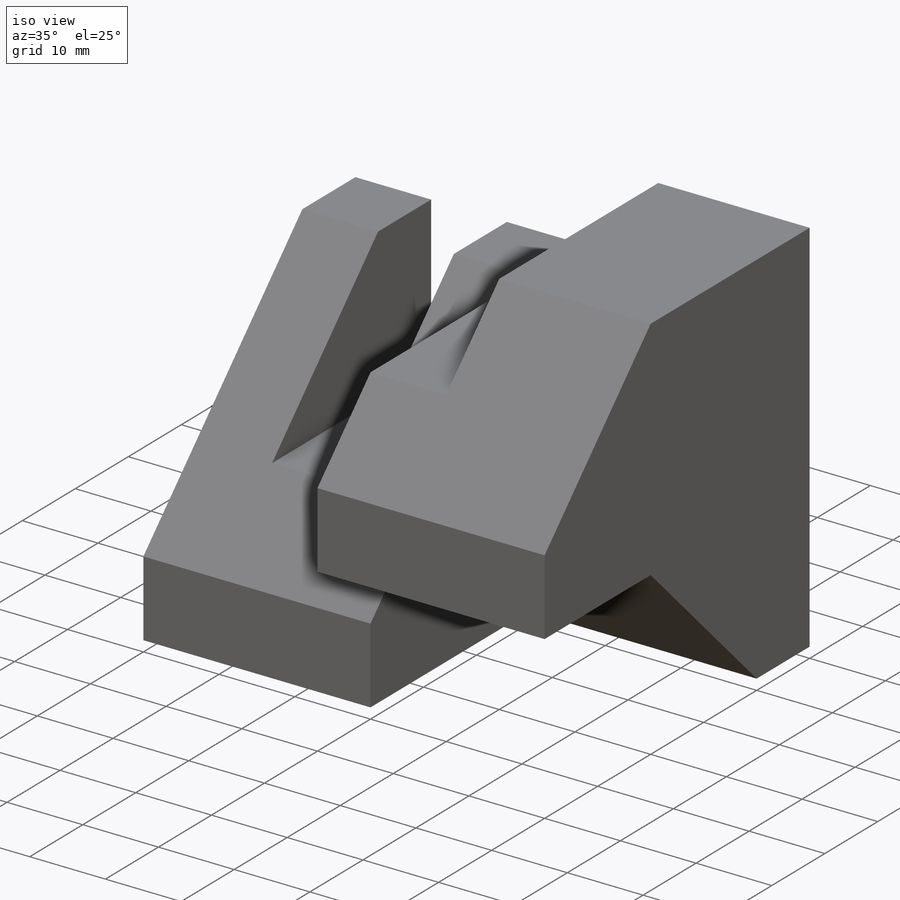
[diagram: iso view]
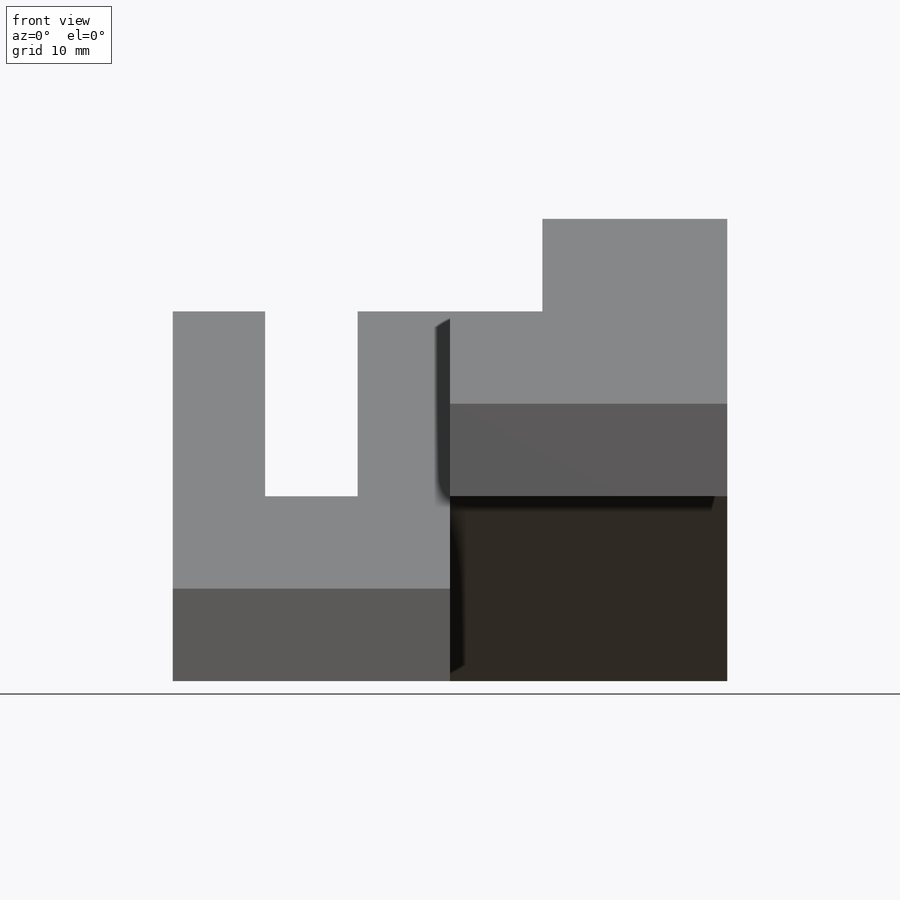
[diagram: front view]
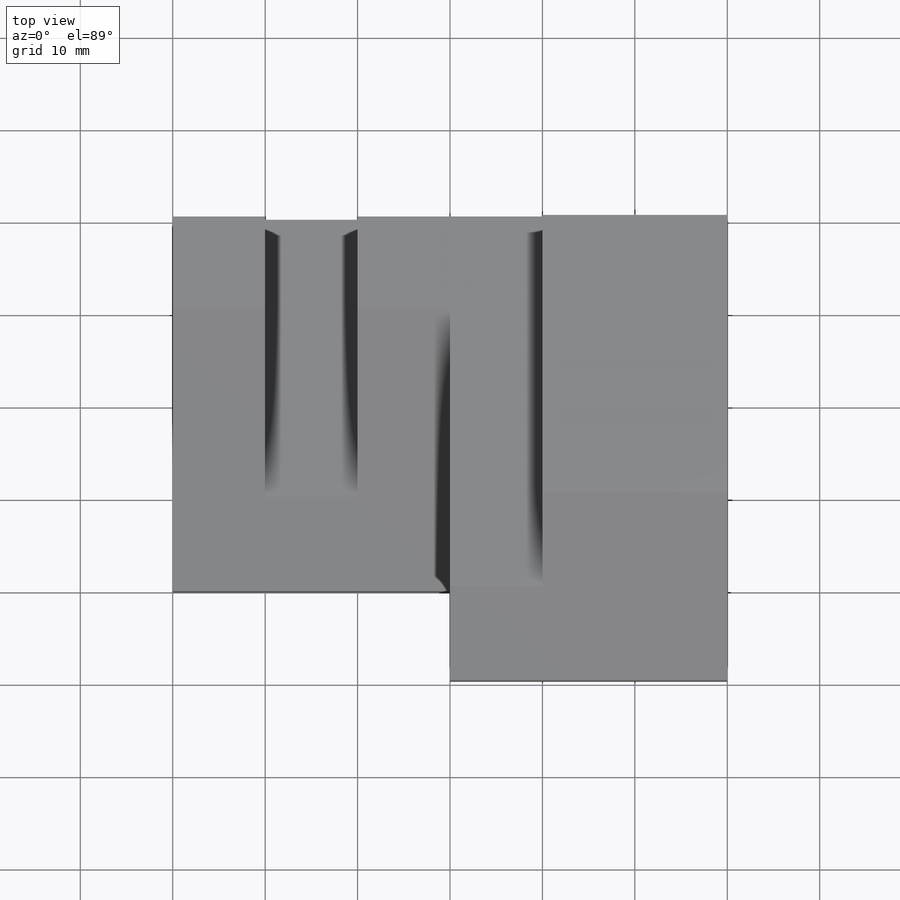
[diagram: top view]
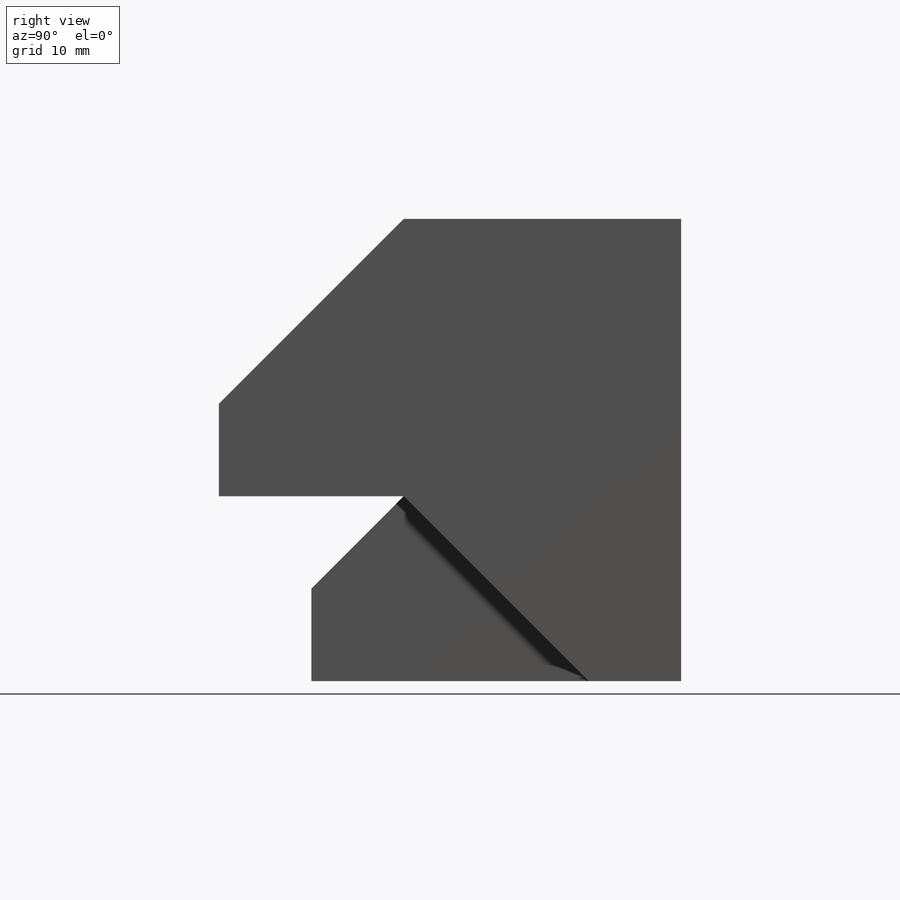
[diagram: right view]
SOLIDWORKS PART (.sldprt)
format: sldprt  version: not decoded by parser v0  size: 364,032 bytes
history: native  units: mm
features: sketch x18, cut_extrude x13, extrude x5, material x1 (+13 scaffold rows collapsed)
feature tree (50):
  scaffold x13  (default folders/planes/origin — collapsed)
  material  "Material <not specified>"
  sketch  "Sketch1"  dims[c1.D1=~65.515037mm c1.D2=~95.954331mm c2.D1=60.0mm c2.D2=50.0mm]
  extrude  "Boss-Extrude1"  Depth=50mm
  sketch  "Sketch2"  dims[c1.D1=~12.087373mm c1.D2=~44.479257mm c2.D1=40.0mm c2.D2=10.0mm]
  cut_extrude  "Cut-Extrude1"  Depth=50mm
  sketch  "Sketch3"  dims[c1.D1=~12.055613mm c1.D2=~7.453528mm c2.D1=10.0mm c2.D2=20.0mm c2.D3=10.0mm]
  cut_extrude  "Cut-Extrude2"  Depth=50mm
  sketch  "Sketch4"  dims[D1=30.0mm D2=10.0mm]
  cut_extrude  "Cut-Extrude3"  Depth=40mm
  sketch  "Sketch5"  dims[c1.D1=10.0mm c1.D2=~9.848845mm c2.D1=10.0mm]
  extrude  "Boss-Extrude2"  Depth=20mm
  sketch  "Sketch6"  dims[c1.D1=~10.455949mm c1.D2=~21.963491mm c2.D1=10.0mm c2.D2=30.0mm]
  cut_extrude  "Cut-Extrude4"  Depth=20mm
  sketch  "Sketch7"  dims[c1.D1=~11.974375mm c1.D2=30.0mm c2.D1=10.0mm c2.D2=20.0mm]
  cut_extrude  "Cut-Extrude7"  Depth=10mm
  sketch  "Sketch15"  dims[c1.D1=~12.426104mm c1.D2=~11.339456mm c2.D1=10.0mm c2.D2=10.0mm]
  cut_extrude  "Cut-Extrude25"  Depth=39mm
  sketch  "Sketch16"  dims[D1=10.0mm D2=10.0mm]
  cut_extrude  "Cut-Extrude30"  Depth=0.9999mm
  sketch  "Sketch19"  dims[D1=30.0mm D2=20.0mm D3=20.0mm]
  cut_extrude  "Cut-Extrude36"  Depth=30mm
  sketch  "Sketch26"  dims[D1=10.0mm D2=10.0mm]
  cut_extrude  "Cut-Extrude37"  Depth=20mm
  sketch  "Sketch27"  dims[c1.D1=~11.601239mm c1.D2=39.9999mm c2.D1=10.0mm]
  extrude  "Boss-Extrude22"  Depth=10mm
  sketch  "Sketch28"  dims[D1=30.0mm]
  extrude  "Boss-Extrude24"  Depth=30mm
  sketch  "Sketch29"  dims[D1=20.0mm D2=10.0mm]
  cut_extrude  "Cut-Extrude38"  Depth=30mm
  sketch  "Sketch30"  dims[D1=10.0mm D2=10.0mm]
  extrude  "Boss-Extrude25"  Depth=30mm
  sketch  "Sketch31"  dims[D1=20.0mm D2=20.0mm]
  cut_extrude  "Cut-Extrude39"  Depth=30mm
  sketch  "Sketch33"  dims[D1=10.0mm D2=30.0mm]
  cut_extrude  "Cut-Extrude42"  Depth=30mm
  sketch  "Sketch34"  dims[D1=10.0mm D2=10.0mm]
  cut_extrude  "Cut-Extrude43"  Depth=0.0001mm
decode coverage: 36 of 36 modeling features carry decoded parameters
note: ~ marks probable driven/reference dimensions
note: suppression state not decoded; provenance and decode notes live in map.json
